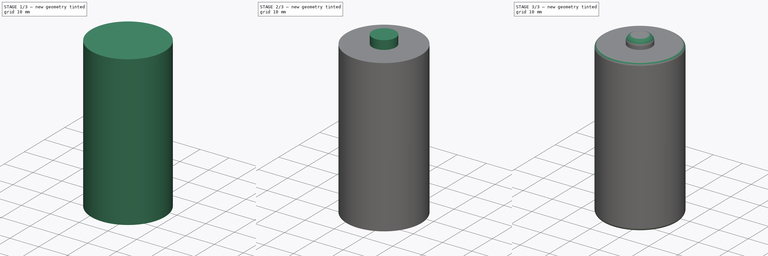
[diagram: build sequence overview — one tinted view per stage of 3, left to right]
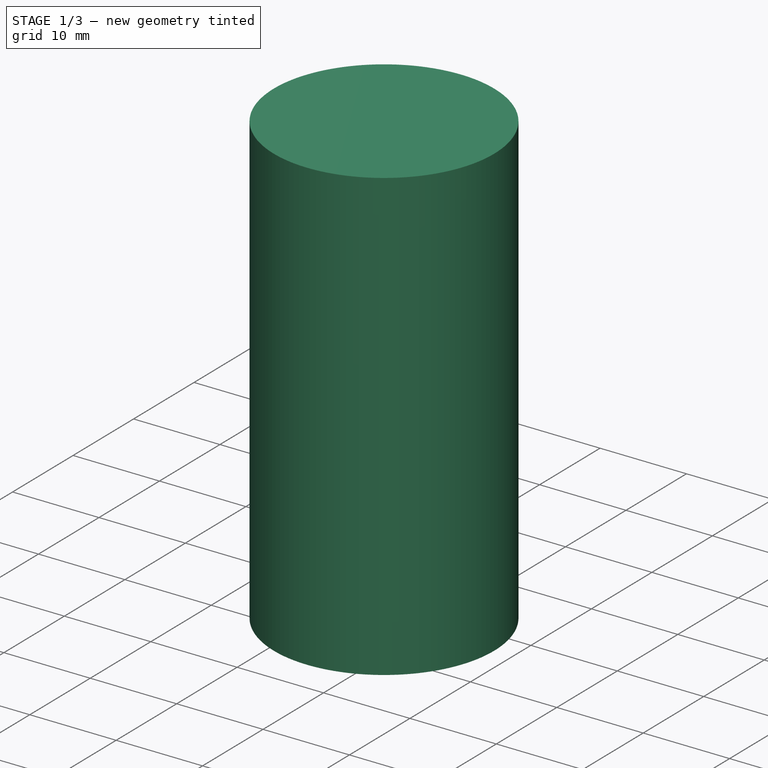
[diagram: stage 1 of 3 — iso view after this stage's code; geometry added in this stage tinted green]
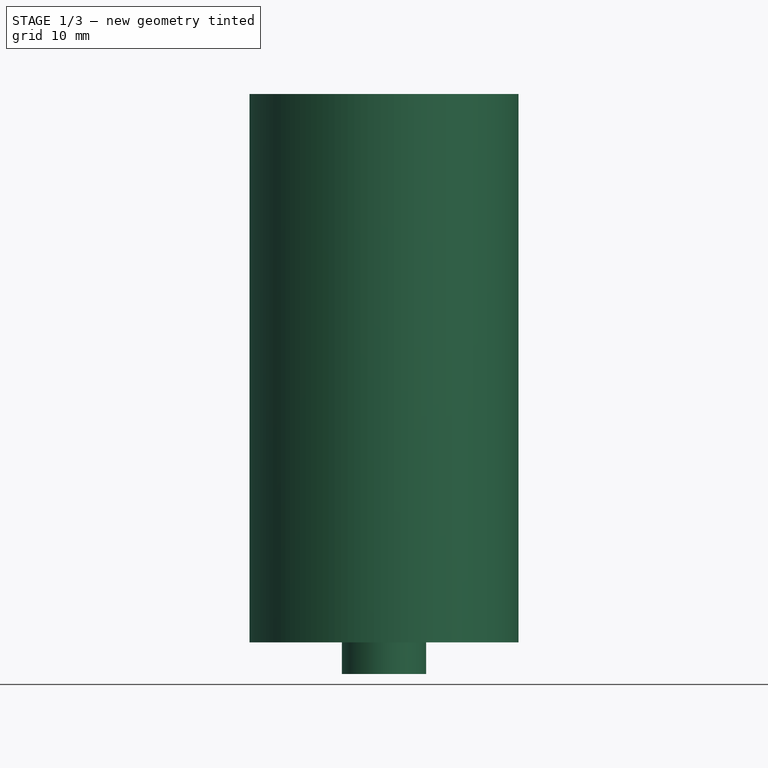
[diagram: stage 1 of 3 — front view after this stage's code; geometry added in this stage tinted green]
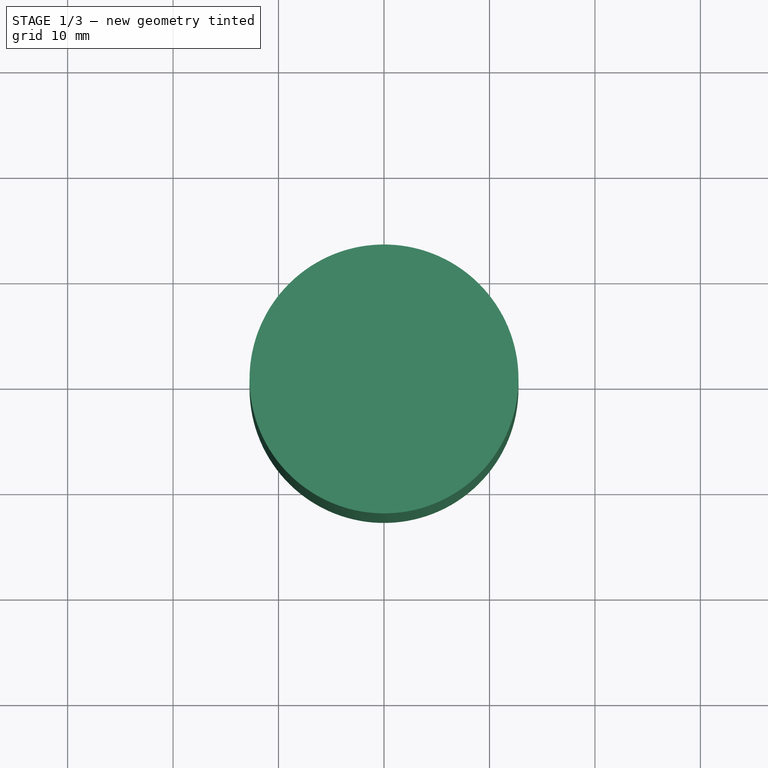
[diagram: stage 1 of 3 — top view after this stage's code; geometry added in this stage tinted green]
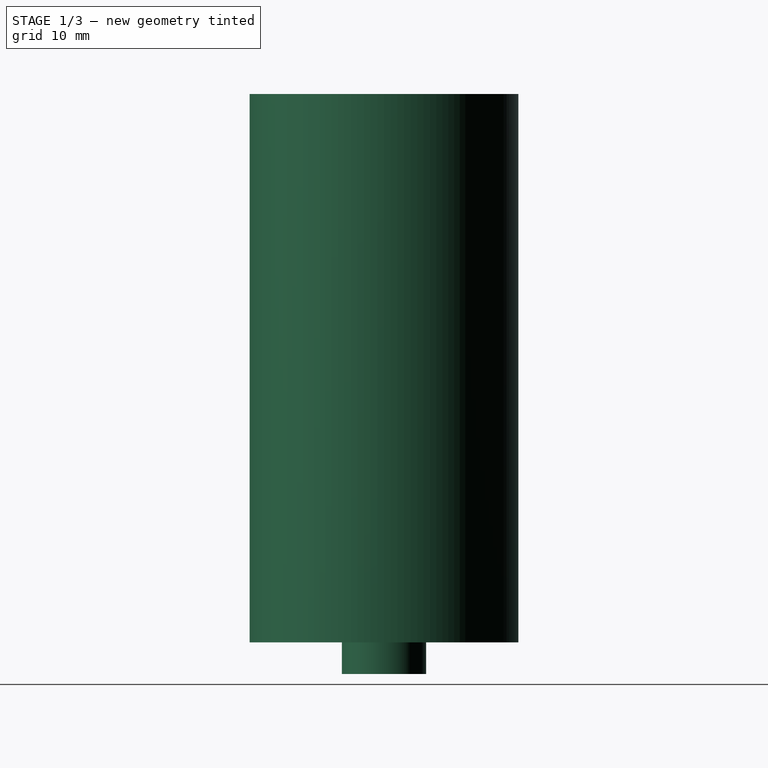
[diagram: stage 1 of 3 — right view after this stage's code; geometry added in this stage tinted green]
FCSTD DOCUMENT  (FreeCAD 0.16R6557 (Git))
Label: BodyInsert
License: CreativeCommons Attribution-ShareAlike
LicenseURL: http://creativecommons.org/licenses/by-sa/4.0/
objects: Sketcher::SketchObject×3, PartDesign::Pad×3, PartDesign::Fillet×2, Part::MultiFuse×1, App::DocumentObjectGroup×1, Part::Feature×1
note: 13 computed .brp shape members not serialized (recipe doc carries the construction recipe); baked Part::Feature solids carry a one-line shape summary decoded from their .brp

FEATURE [Sketcher::SketchObject] Sketch  label="BaseCylinderSketch"
  sketch-geometry (1):
    g0: Circle CenterX=0 CenterY=0 CenterZ=0 NormalX=0 NormalY=0 NormalZ=1 Radius=12.75
  constraints (2):
    c: Coincident(g0,g-1)
    c: Radius(g0) = 12.75
FEATURE [PartDesign::Pad] Pad  label="BaseCylinderAxis"
  Length = 52
  Length2 = 100
  Midplane = true
  Sketch = -> Sketch
  Type = 0
FEATURE [PartDesign::Pad] Pad002  label="ExtrudedSupportCylinder2"
  Length = 3
  Length2 = 100
  Sketch = -> Sketch002
  Type = 0
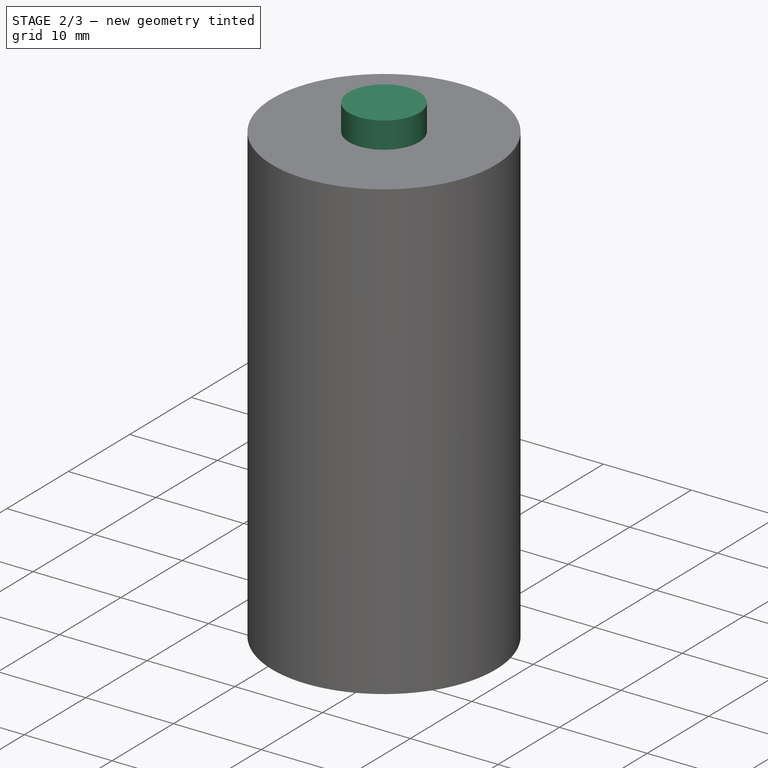
[diagram: stage 2 of 3 — iso view after this stage's code; geometry added in this stage tinted green]
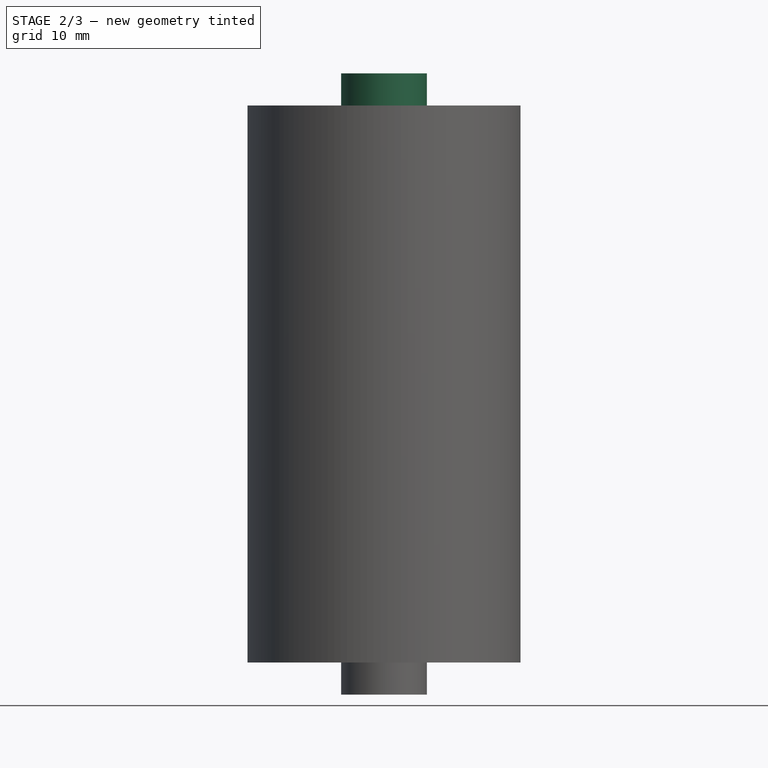
[diagram: stage 2 of 3 — front view after this stage's code; geometry added in this stage tinted green]
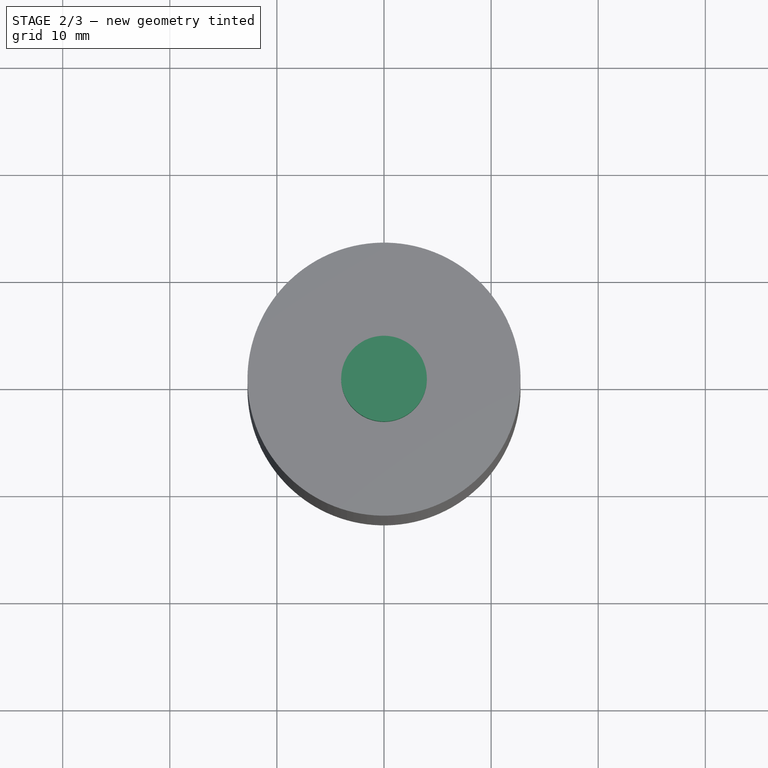
[diagram: stage 2 of 3 — top view after this stage's code; geometry added in this stage tinted green]
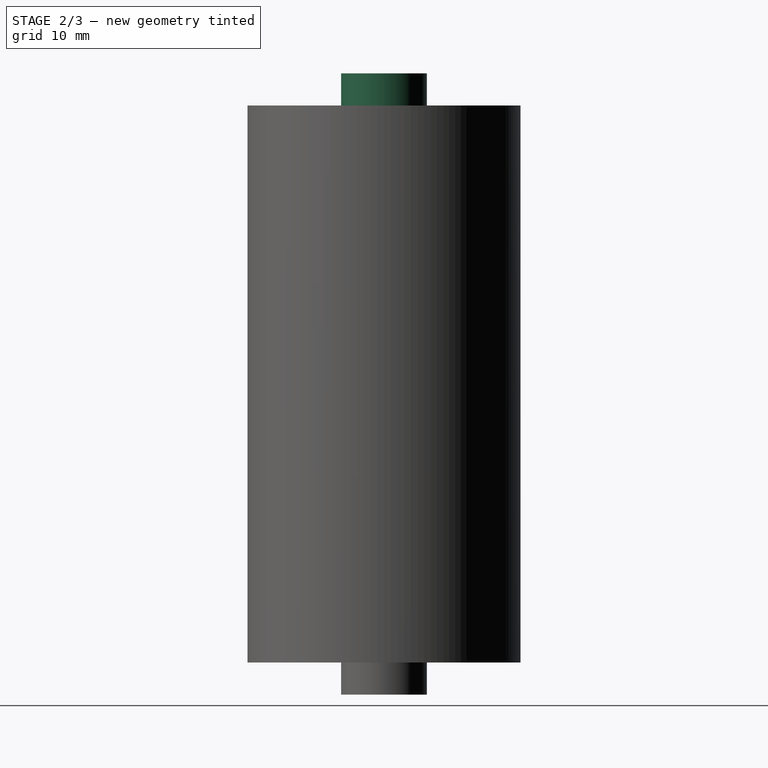
[diagram: stage 2 of 3 — right view after this stage's code; geometry added in this stage tinted green]
FEATURE [Sketcher::SketchObject] Sketch001  label="SupportCylinder1Sketch"
  Placement = pos=(0,0,26) rot=(0,0,1;0rad)
  Support = -> Pad [Face3]
  sketch-geometry (1):
    g0: Circle CenterX=0 CenterY=0 CenterZ=0 NormalX=0 NormalY=0 NormalZ=1 Radius=4
  constraints (2):
    c: Coincident(g0,g-1)
    c: Radius(g0) = 4
FEATURE [Sketcher::SketchObject] Sketch002  label="SupportCylinder2Sketch"
  Placement = pos=(0,0,-26) rot=(1,0,0;3.14159rad)
  Support = -> Pad [Face2]
  sketch-geometry (1):
    g0: Circle CenterX=0 CenterY=0 CenterZ=0 NormalX=0 NormalY=0 NormalZ=1 Radius=4
  constraints (2):
    c: Radius(g0) = 4
    c: Coincident(g0,g-1)
FEATURE [PartDesign::Pad] Pad001  label="ExtrudedSupportCylinder1"
  Length = 3
  Length2 = 100
  Sketch = -> Sketch001
  Type = 0
FEATURE [Part::MultiFuse] Fusion  label="BooleanCylinder+Supports"
  Shapes = -> [Pad001,Pad002]
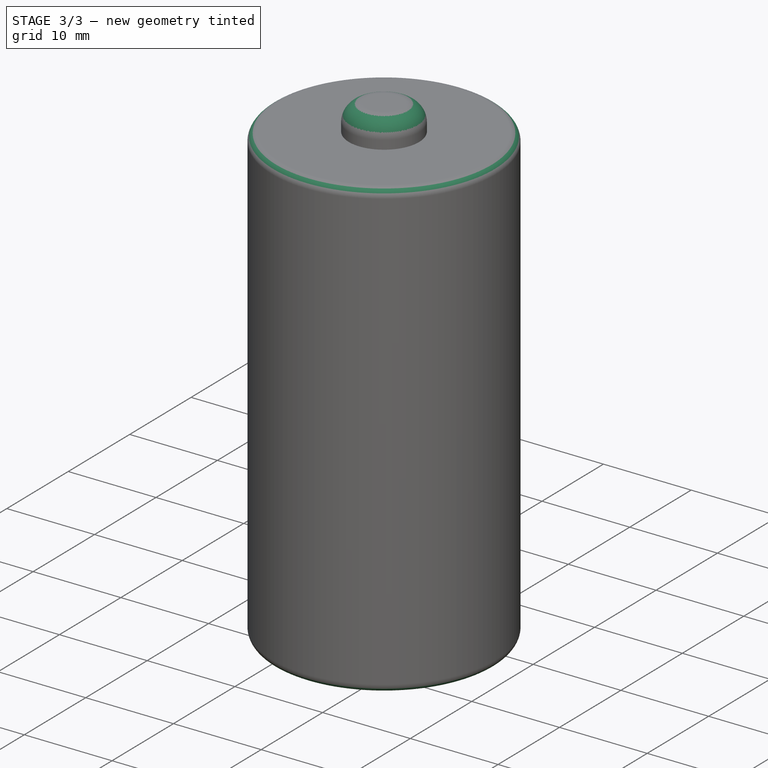
[diagram: stage 3 of 3 — iso view after this stage's code; geometry added in this stage tinted green]
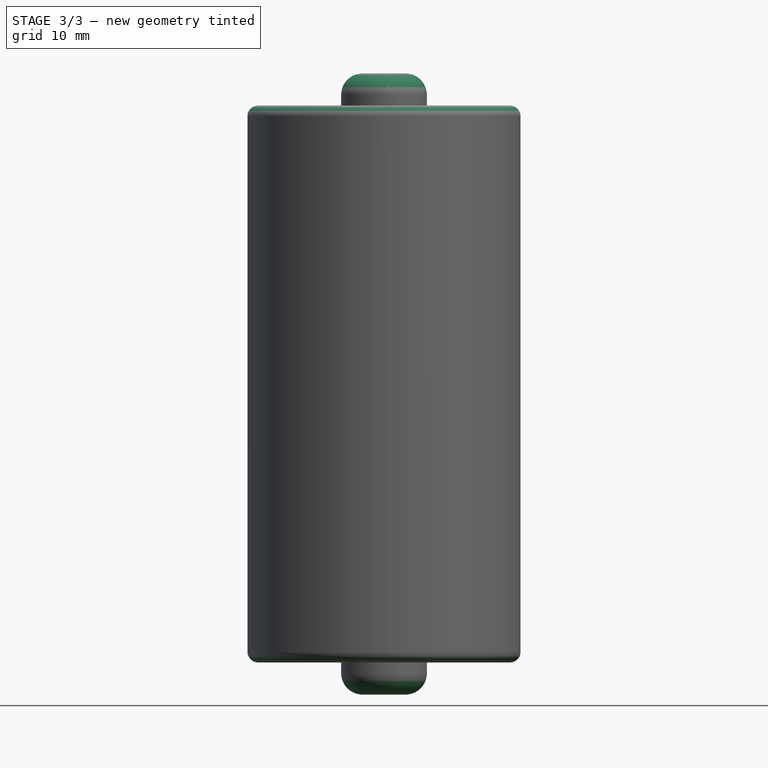
[diagram: stage 3 of 3 — front view after this stage's code; geometry added in this stage tinted green]
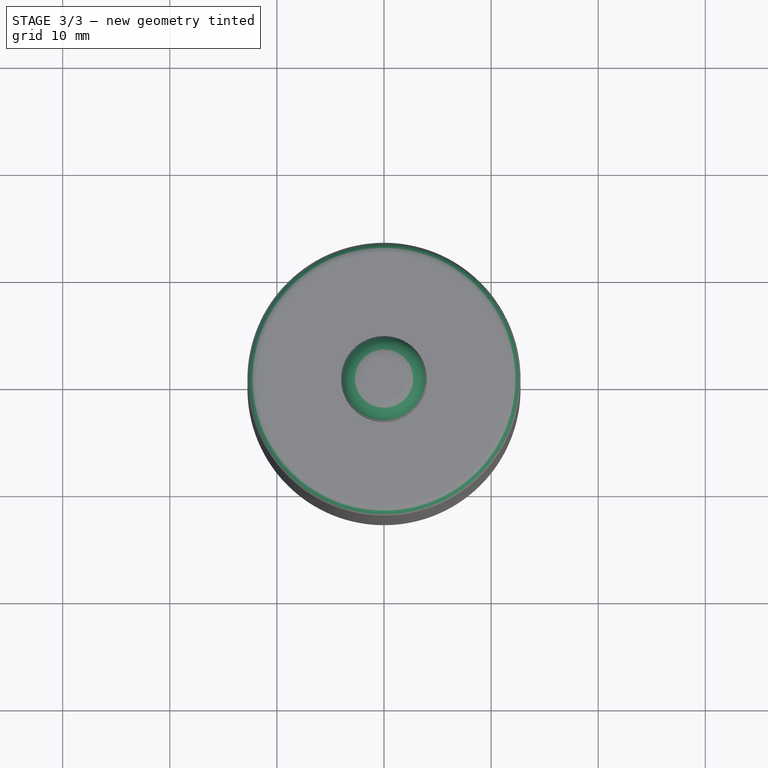
[diagram: stage 3 of 3 — top view after this stage's code; geometry added in this stage tinted green]
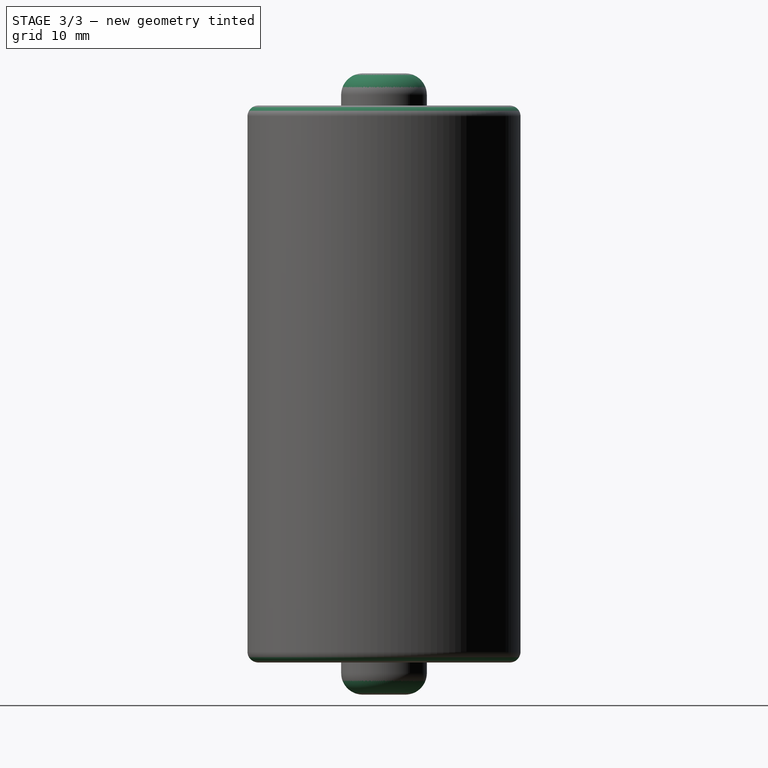
[diagram: stage 3 of 3 — right view after this stage's code; geometry added in this stage tinted green]
FEATURE [PartDesign::Fillet] Fillet  label="2mmFilletForSupports"
  Base = -> Fusion [Edge9,Edge1]
  Radius = 2
FEATURE [PartDesign::Fillet] Fillet001  label="1mmFilletForCylinderBody"
  Base = -> Fillet [Edge6,Edge7]
  Radius = 1
FEATURE [App::DocumentObjectGroup] Group  label="Steps"
  Group = -> [Pad,Fusion,Fillet,Fillet001]
FEATURE [Part::Feature] Fillet001001  label="BodyInsert"
  shape: bbox 27.6 x 27.6 x 58 mm, 11 faces (baked)
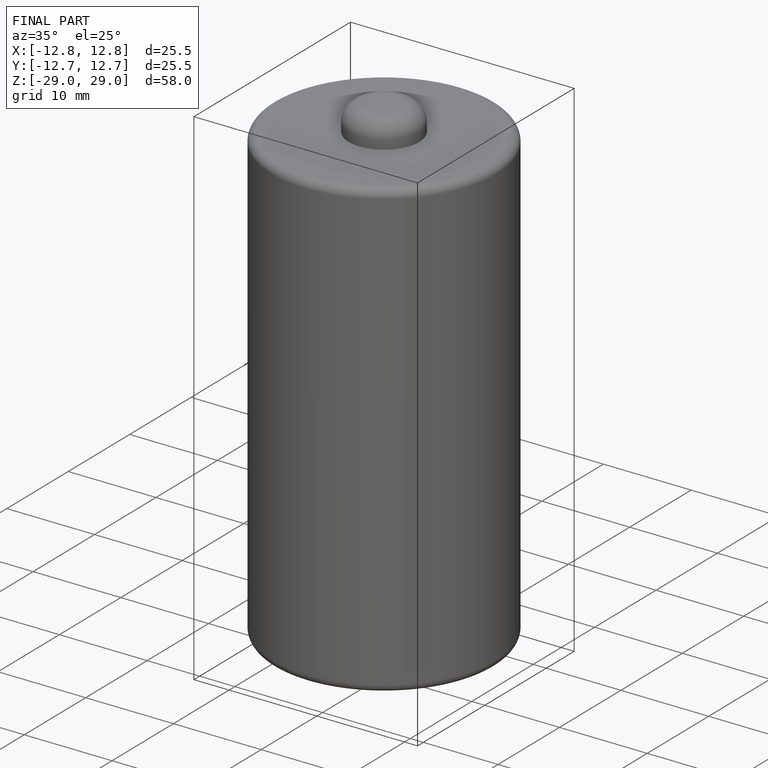
[diagram: finished part — iso view with bounding-box wireframe]
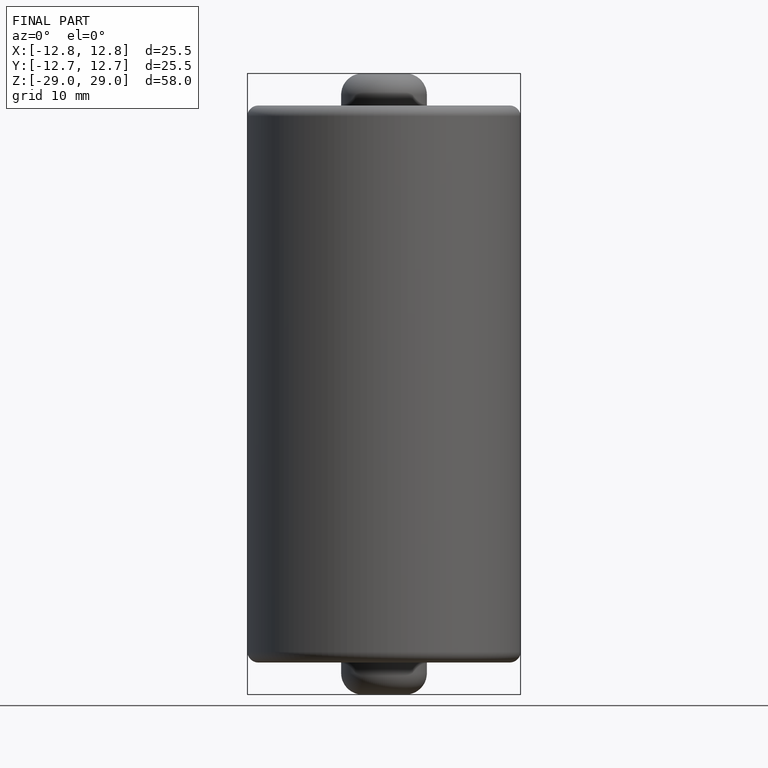
[diagram: finished part — front view with bounding-box wireframe]
